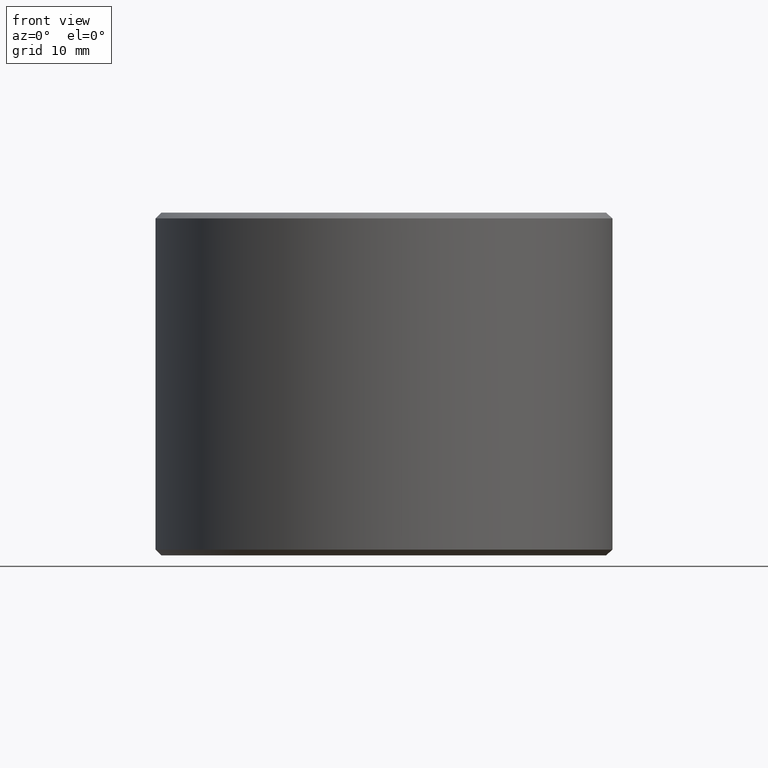
[diagram: clean part render]
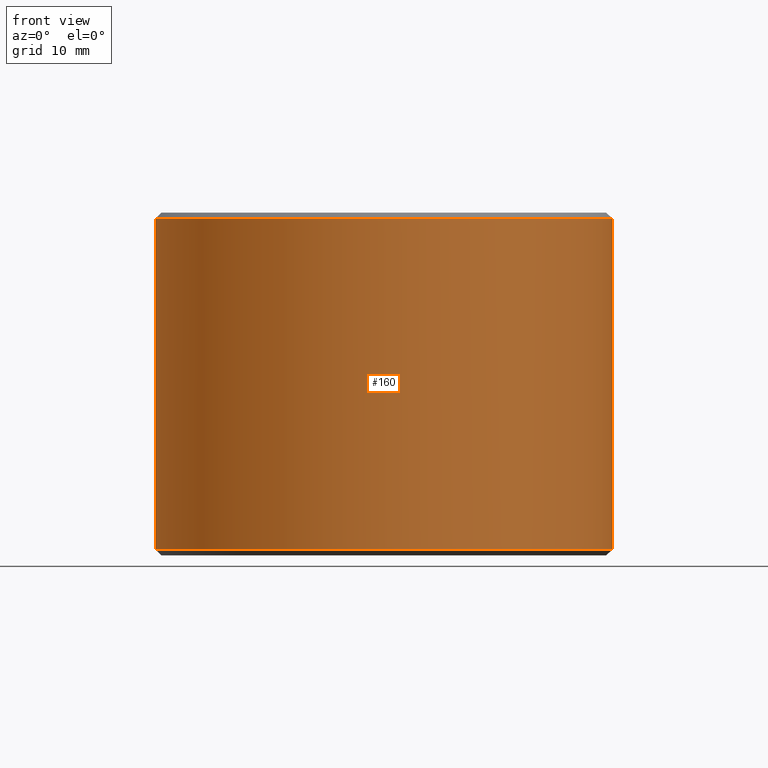
[diagram: same view with one face highlighted and labeled with its STEP entity id]
A machine part, front view. The second image highlights one B-rep face of the part: STEP entity #160.
In plain terms, the highlighted cylindrical surface (bore or boss wall) has radius 20 mm, axis along (-0, 0, -1).
Its self-contained STEP definition (entity closure, byte-faithful):
#160=ADVANCED_FACE('',(#186,#187),#188,.T.);
#186=FACE_OUTER_BOUND('',#3318,.T.);
#187=FACE_OUTER_BOUND('',#3319,.T.);
#188=CYLINDRICAL_SURFACE('',#3320,0.02);
#3318=EDGE_LOOP('',(#6475));
#3319=EDGE_LOOP('',(#6476));
#3320=AXIS2_PLACEMENT_3D('',#6477,#6478,#6479);
#6475=ORIENTED_EDGE('',*,*,#6520,.T.);
#6476=ORIENTED_EDGE('',*,*,#6521,.F.);
#6477=CARTESIAN_POINT('',(0.0,0.0,-1.0842021724855E-019));
#6478=DIRECTION('',(0.0,-6.12323399573677E-017,-1.0));
#6479=DIRECTION('',(0.0,1.0,-6.12323399573677E-017));
#6520=EDGE_CURVE('',#6552,#6552,#6553,.T.);
#6521=EDGE_CURVE('',#6554,#6554,#6555,.T.);
#6552=VERTEX_POINT('',#6814);
#6553=CIRCLE('',#6815,0.02);
#6554=VERTEX_POINT('',#6816);
#6555=CIRCLE('',#6817,0.02);
#6814=CARTESIAN_POINT('',(0.0,0.02,0.0295));
#6815=AXIS2_PLACEMENT_3D('',#6850,#6851,#6852);
#6816=CARTESIAN_POINT('',(0.0,0.02,0.0005));
#6817=AXIS2_PLACEMENT_3D('',#6853,#6854,#6855);
#6850=CARTESIAN_POINT('',(0.0,0.0,0.0295));
#6851=DIRECTION('',(0.0,-6.12323399573677E-017,-1.0));
#6852=DIRECTION('',(0.0,1.0,-6.12323399573677E-017));
#6853=CARTESIAN_POINT('',(0.0,0.0,0.0005));
#6854=DIRECTION('',(0.0,-6.12323399573677E-017,-1.0));
#6855=DIRECTION('',(0.0,1.0,-6.12323399573677E-017));